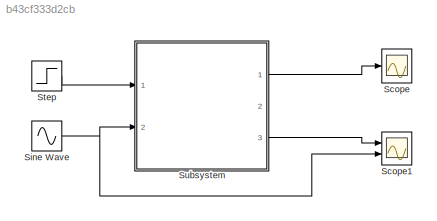
MODEL slx_b43cf333d2cb
KIND model
CONFIG AbsTol = auto
CONFIG FixedStep = 0.001
CONFIG MaxStep = auto
CONFIG MinStep = auto
CONFIG RelTol = 1e-3
CONFIG SampleTimeConstraint = Unconstrained
CONFIG Solver = FixedStepAuto
CONFIG SolverMode = Auto
CONFIG SolverName = FixedStepAuto
CONFIG StartTime = 0.0
CONFIG StopTime = 1
BLOCK [Scope] Scope
  Ports = [1]
  ScopeSpecificationString = Simulink.scopes.TimeScopeBlockCfg('CurrentConfiguration', extmgr.ConfigurationSet(extmgr.Configuration('Core','General UI',true),extmgr.Configuration('Core','Source UI',true),extmgr.Configuration('Sources','WiredSimulink',true),extmgr.Configuration('Visuals','Time Domain',true,'SerializedDisplays',{struct('MinYLimReal','-0.0048','MaxYLimReal','0.0432','YLabelReal','','MinYLimMag','0.00000','MaxYLi...<+1350ch>
BLOCK [Scope] Scope1
  NumInputPorts = 2
  Ports = [2]
  ScopeSpecificationString = Simulink.scopes.TimeScopeBlockCfg('CurrentConfiguration', extmgr.ConfigurationSet(extmgr.Configuration('Core','General UI',true),extmgr.Configuration('Core','Source UI',true),extmgr.Configuration('Sources','WiredSimulink',true,'DataLoggingVariableName','ScopeData1'),extmgr.Configuration('Visuals','Time Domain',true,'SerializedDisplays',{struct('MinYLimReal','-1.24999','MaxYLimReal','1.24999','YLab...<+1382ch>
BLOCK [Sin] Sine Wave
  Frequency = 50
  Ports = [0, 1]
BLOCK [Step] Step
  Time = 0.01
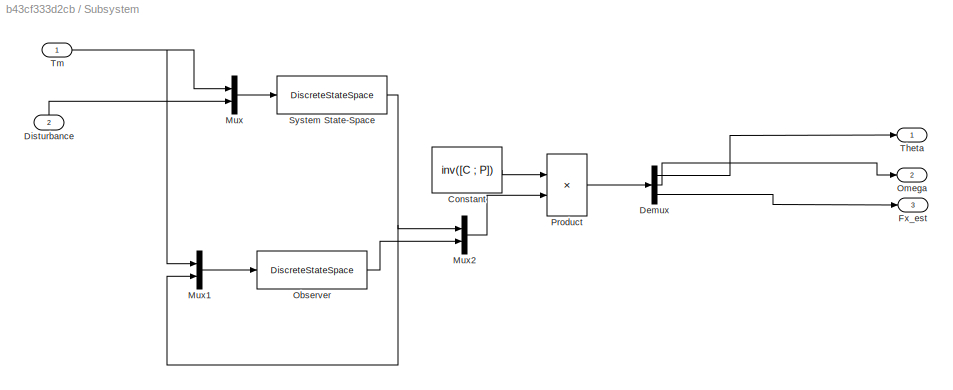
BLOCK [SubSystem] Subsystem
  InitFcn = rw = 0.5;\nIw = 12.5;\npol1 = 0.5;\npol2 = 0.55;\nA = [0 1 0; 0 0 -rw/Iw; 0 0 0];\nB = [0 ; 1/Iw ; 0];\nC = [1 0 0];\nDo = 0;\nTs = 0.001;\n\nsysta = ss(A,B,C,Do);\nsystaa = c2d(systa, Ts);\nAd = systaa.a;\nBd = systaa.b;\nCd = systaa.c;\n\nA2 = [ 0 1; 0 0 ];\nB2 = [ 0 0; 1/Iw -rw/Iw];\nC2 = [1 0];\nD2 = [0 0];\n\nsys2 = ss(A2,B2,C2,D2);\nsysdis2 = c2d(sys2, Ts);\nAd2 = sysdis2.a;\nBd2 = sysdis2.b;\nCd2 = sysdis2.c;\nDd2 =...<+298ch>
  Ports = [2, 3]
  RequestExecContextInheritance = off
  Variant = off
BLOCK [Constant] Subsystem/Constant
  Value = inv([C ; P])
BLOCK [Demux] Subsystem/Demux
  DisplayOption = bar
  Outputs = 3
  Ports = [1, 3]
BLOCK [Inport] Subsystem/Disturbance
  IconDisplay = Port number
  Port = 2
BLOCK [Outport] Subsystem/Fx_est
  IconDisplay = Port number
  Port = 3
BLOCK [Mux] Subsystem/Mux
  DisplayOption = bar
  Inputs = 2
  Ports = [2, 1]
BLOCK [Mux] Subsystem/Mux1
  DisplayOption = bar
  Inputs = 2
  Ports = [2, 1]
BLOCK [Mux] Subsystem/Mux2
  DisplayOption = bar
  Inputs = 2
  Ports = [2, 1]
BLOCK [DiscreteStateSpace] Subsystem/Observer
  A = [pol1 0 ; 0 pol2]
  B = Ga
  C = [1 0; 0 1]
  D = [0 0; 0 0]
  SampleTime = -1
BLOCK [Outport] Subsystem/Omega
  IconDisplay = Port number
  Port = 2
BLOCK [Product] Subsystem/Product
  InputSameDT = off
  Multiplication = Matrix(*)
  OutDataTypeStr = Inherit: Inherit via internal rule
  Ports = [2, 1]
  RndMeth = Floor
  SaturateOnIntegerOverflow = off
BLOCK [DiscreteStateSpace] Subsystem/System State-Space
  A = Ad2
  B = Bd2
  C = Cd2
  D = Dd2
  SampleTime = -1
BLOCK [Outport] Subsystem/Theta
  IconDisplay = Port number
BLOCK [Inport] Subsystem/Tm
  IconDisplay = Port number
NET Sine Wave:1 -> Scope1:2, Subsystem:2
LINE Step:1 -> Subsystem:1
LINE Subsystem/Constant:1 -> Subsystem/Product:1
LINE Subsystem/Demux:1 -> Subsystem/Theta:1
LINE Subsystem/Demux:2 -> Subsystem/Omega:1
LINE Subsystem/Demux:3 -> Subsystem/Fx_est:1
LINE Subsystem/Disturbance:1 -> Subsystem/Mux:2
LINE Subsystem/Mux1:1 -> Subsystem/Observer:1
LINE Subsystem/Mux2:1 -> Subsystem/Product:2
LINE Subsystem/Mux:1 -> Subsystem/System State-Space:1
LINE Subsystem/Observer:1 -> Subsystem/Mux2:2
LINE Subsystem/Product:1 -> Subsystem/Demux:1
NET Subsystem/System State-Space:1 -> Subsystem/Mux1:2, Subsystem/Mux2:1
NET Subsystem/Tm:1 -> Subsystem/Mux1:1, Subsystem/Mux:1
LINE Subsystem:1 -> Scope:1
LINE Subsystem:3 -> Scope1:1
note: NET lines group one-source signal fan-out (src -> all destinations, sorted); 1:1 wires keep LINE
